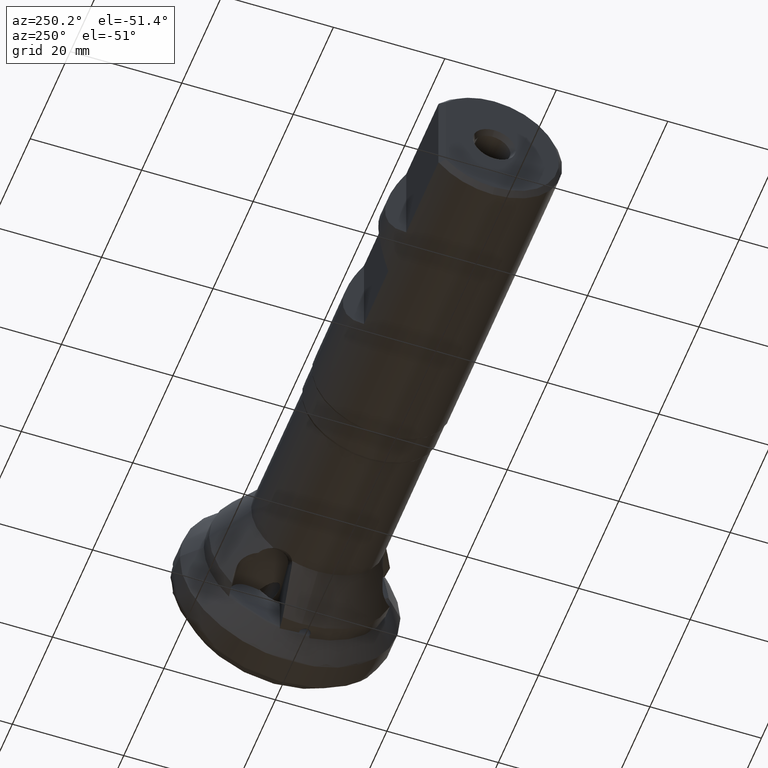
[diagram: clean part render]
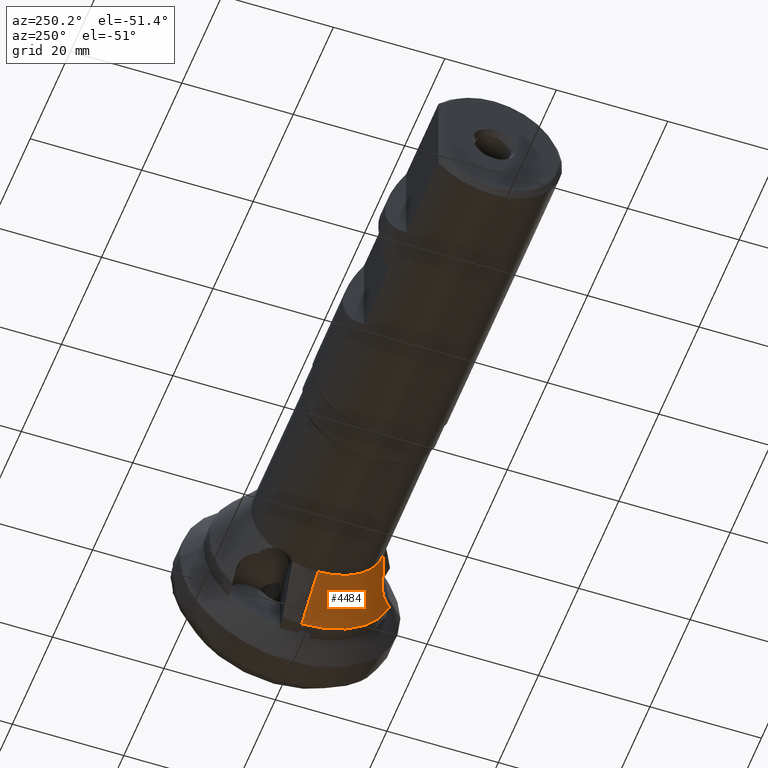
[diagram: same view with one face highlighted and labeled with its STEP entity id]
A machine part, auxiliary view. The second image highlights one B-rep face of the part: STEP entity #4484.
In plain terms, the highlighted conical surface has half-angle 30 deg.
Its self-contained STEP definition (entity closure, byte-faithful):
#45 = B_SPLINE_CURVE_WITH_KNOTS ( 'NONE', 3,
 ( #4286, #6453, #3791, #599, #4307, #1150, #4857, #1676 ),
 .UNSPECIFIED., .F., .F.,
 ( 4, 2, 2, 4 ),
 ( 1.195973256514575300E-014, 0.001483257946159339400, 0.002224886919233032700, 0.002966515892306726200 ),
 .UNSPECIFIED. ) ;
#46 = EDGE_CURVE ( 'NONE', #5922, #237, #4015, .T. ) ;
#141 = EDGE_CURVE ( 'NONE', #5922, #5169, #6803, .T. ) ;
#237 = VERTEX_POINT ( 'NONE', #5972 ) ;
#312 = CARTESIAN_POINT ( 'NONE',  ( -13.17600000000000700, 0.0000000000000000000, 0.0000000000000000000 ) ) ;
#322 = ORIENTED_EDGE ( 'NONE', *, *, #3112, .F. ) ;
#323 = CARTESIAN_POINT ( 'NONE',  ( -15.51637310254267500, -13.92329718746386300, -6.339907771302055300 ) ) ;
#526 = DIRECTION ( 'NONE',  ( 0.0000000000000000000, 0.0000000000000000000, -1.000000000000000000 ) ) ;
#572 = CARTESIAN_POINT ( 'NONE',  ( -14.29369055177255100, -14.82479804637915600, -6.033915994759585300 ) ) ;
#599 = CARTESIAN_POINT ( 'NONE',  ( -20.15300479942955600, -12.06264052520544400, -3.717922587879297400 ) ) ;
#674 = ORIENTED_EDGE ( 'NONE', *, *, #46, .F. ) ;
#691 = CARTESIAN_POINT ( 'NONE',  ( -13.36690338539961700, -15.60677632926806300, -5.479106854178263000 ) ) ;
#728 = DIRECTION ( 'NONE',  ( 0.8660244291774795700, 0.0000000000000000000, -0.5000016880649711400 ) ) ;
#859 = DIRECTION ( 'NONE',  ( 0.0000000000000000000, 0.0000000000000000000, -1.000000000000000000 ) ) ;
#1086 = VECTOR ( 'NONE', #728, 1000.000000000000000 ) ;
#1119 = CARTESIAN_POINT ( 'NONE',  ( -13.74279684287580700, -15.28564469960080400, -5.725513246154736900 ) ) ;
#1150 = CARTESIAN_POINT ( 'NONE',  ( -19.56899622333038000, -12.28701818069042600, -4.119897846921881900 ) ) ;
#1332 = CONICAL_SURFACE ( 'NONE', #1617, 16.64999999999999500, 0.5236007248089266100 ) ;
#1385 = CARTESIAN_POINT ( 'NONE',  ( -15.98530327373469400, -13.61160238523806500, -6.369225011001479000 ) ) ;
#1617 = AXIS2_PLACEMENT_3D ( 'NONE', #5159, #4066, #6739 ) ;
#1676 = CARTESIAN_POINT ( 'NONE',  ( -19.14843200605529500, -12.48726256752252800, -4.284364252389827300 ) ) ;
#1717 = ORIENTED_EDGE ( 'NONE', *, *, #2329, .F. ) ;
#1738 = CIRCLE ( 'NONE', #2429, 11.99999999999999500 ) ;
#1762 = CARTESIAN_POINT ( 'NONE',  ( -13.55590567701725900, -15.44715621190274600, -5.601935350943398900 ) ) ;
#1843 = CARTESIAN_POINT ( 'NONE',  ( -13.17600000000000000, -15.76469322306284900, -5.356953199601067100 ) ) ;
#1912 = CARTESIAN_POINT ( 'NONE',  ( -16.72038457883487800, -13.20973583487509200, -6.226803821439577100 ) ) ;
#1988 = CARTESIAN_POINT ( 'NONE',  ( -17.37676110448518300, -12.93880028506780100, -5.911076082954972200 ) ) ;
#2271 = B_SPLINE_CURVE_WITH_KNOTS ( 'NONE', 3,
 ( #3898, #1762, #691, #6045 ),
 .UNSPECIFIED., .F., .F.,
 ( 4, 4 ),
 ( 0.0004663446877475289500, 0.001294933144289122600 ),
 .UNSPECIFIED. ) ;
#2316 = VERTEX_POINT ( 'NONE', #4370 ) ;
#2329 = EDGE_CURVE ( 'NONE', #4595, #2748, #2271, .T. ) ;
#2429 = AXIS2_PLACEMENT_3D ( 'NONE', #6898, #3722, #526 ) ;
#2443 = ORIENTED_EDGE ( 'NONE', *, *, #6875, .F. ) ;
#2548 = CARTESIAN_POINT ( 'NONE',  ( -16.95983074412414000, -13.11089854270103300, -6.111626338240144600 ) ) ;
#2649 = CARTESIAN_POINT ( 'NONE',  ( -15.51637310254267500, -13.92329718746386300, -6.339907771302055300 ) ) ;
#2748 = VERTEX_POINT ( 'NONE', #1843 ) ;
#2815 = CARTESIAN_POINT ( 'NONE',  ( -21.22999999999233000, -11.75619173056652000, -2.406648290498488900 ) ) ;
#3080 = CARTESIAN_POINT ( 'NONE',  ( -18.52049868956225600, -12.59674162429483200, -5.037102076368069200 ) ) ;
#3112 = EDGE_CURVE ( 'NONE', #4183, #5169, #45, .T. ) ;
#3517 = ORIENTED_EDGE ( 'NONE', *, *, #4232, .T. ) ;
#3597 = CARTESIAN_POINT ( 'NONE',  ( -17.77700534866228900, -12.80394160120070500, -5.651445889722583400 ) ) ;
#3646 = CARTESIAN_POINT ( 'NONE',  ( -16.95983074412414000, -13.11089854270103300, -6.111626338240144600 ) ) ;
#3722 = DIRECTION ( 'NONE',  ( 1.000000000000000000, -0.0000000000000000000, -0.0000000000000000000 ) ) ;
#3763 = CARTESIAN_POINT ( 'NONE',  ( -14.88616555250096400, -14.36994745491897700, -6.233380843496274100 ) ) ;
#3791 = CARTESIAN_POINT ( 'NONE',  ( -20.68000981247876200, -11.89201871699774700, -3.222211777670165300 ) ) ;
#3898 = CARTESIAN_POINT ( 'NONE',  ( -13.74279684287580700, -15.28564469960080400, -5.725513246154736900 ) ) ;
#4015 = B_SPLINE_CURVE_WITH_KNOTS ( 'NONE', 3,
 ( #5633, #1912, #5073, #1385, #4545, #323 ),
 .UNSPECIFIED., .F., .F.,
 ( 4, 2, 4 ),
 ( 0.0000000000000000000, 0.0008471933625931627300, 0.001694386725186325500 ),
 .UNSPECIFIED. ) ;
#4023 = DIRECTION ( 'NONE',  ( 1.000000000000000000, -0.0000000000000000000, -0.0000000000000000000 ) ) ;
#4041 = VERTEX_POINT ( 'NONE', #5376 ) ;
#4066 = DIRECTION ( 'NONE',  ( 1.000000000000000000, -0.0000000000000000000, -0.0000000000000000000 ) ) ;
#4183 = VERTEX_POINT ( 'NONE', #2815 ) ;
#4232 = EDGE_CURVE ( 'NONE', #2316, #4041, #6568, .T. ) ;
#4281 = CARTESIAN_POINT ( 'NONE',  ( -14.00937450501856000, -15.05526804610408800, -5.901782179181215500 ) ) ;
#4286 = CARTESIAN_POINT ( 'NONE',  ( -21.22999999999233000, -11.75619173056652000, -2.406648290498488900 ) ) ;
#4297 = FACE_OUTER_BOUND ( 'NONE', #4550, .T. ) ;
#4307 = CARTESIAN_POINT ( 'NONE',  ( -19.96547441999472000, -12.12869460536600200, -3.867649642012885600 ) ) ;
#4366 = B_SPLINE_CURVE_WITH_KNOTS ( 'NONE', 3,
 ( #2649, #5876, #3763, #572, #4281, #1119 ),
 .UNSPECIFIED., .F., .F.,
 ( 4, 2, 4 ),
 ( 3.224070938884220700E-006, 0.001162889526994847100, 0.002322554983050810100 ),
 .UNSPECIFIED. ) ;
#4370 = CARTESIAN_POINT ( 'NONE',  ( -21.23000000000001100, 0.0000000000000000000, -11.99999999999999600 ) ) ;
#4433 = CARTESIAN_POINT ( 'NONE',  ( -13.17600000000000700, 0.0000000000000000000, -16.64999999999999500 ) ) ;
#4484 = ADVANCED_FACE ( 'NONE', ( #4297 ), #1332, .T. ) ;
#4545 = CARTESIAN_POINT ( 'NONE',  ( -15.74809823161510500, -13.76338927382542100, -6.368246528363211000 ) ) ;
#4550 = EDGE_LOOP ( 'NONE', ( #6352, #3517, #5791, #1717, #2443, #674, #6773, #322 ) ) ;
#4595 = VERTEX_POINT ( 'NONE', #5206 ) ;
#4857 = CARTESIAN_POINT ( 'NONE',  ( -19.35946117575254300, -12.37976934704760800, -4.222233993178820200 ) ) ;
#5047 = EDGE_CURVE ( 'NONE', #4183, #2316, #1738, .T. ) ;
#5073 = CARTESIAN_POINT ( 'NONE',  ( -16.47353767324189300, -13.33336404645196400, -6.298515215218860600 ) ) ;
#5075 = CIRCLE ( 'NONE', #6443, 16.64999999999999500 ) ;
#5159 = CARTESIAN_POINT ( 'NONE',  ( -13.17600000000000700, 0.0000000000000000000, 0.0000000000000000000 ) ) ;
#5169 = VERTEX_POINT ( 'NONE', #5998 ) ;
#5206 = CARTESIAN_POINT ( 'NONE',  ( -13.74279684287580700, -15.28564469960080400, -5.725513246154736900 ) ) ;
#5376 = CARTESIAN_POINT ( 'NONE',  ( -13.17600000000000700, 0.0000000000000000000, -16.64999999999999500 ) ) ;
#5633 = CARTESIAN_POINT ( 'NONE',  ( -16.95983074412414000, -13.11089854270103300, -6.111626338240144600 ) ) ;
#5681 = EDGE_CURVE ( 'NONE', #2748, #4041, #5075, .T. ) ;
#5751 = CARTESIAN_POINT ( 'NONE',  ( -19.14843200605529500, -12.48726256752252800, -4.284364252389827300 ) ) ;
#5791 = ORIENTED_EDGE ( 'NONE', *, *, #5681, .F. ) ;
#5876 = CARTESIAN_POINT ( 'NONE',  ( -15.19522612992302900, -14.14491295511264100, -6.300633195970406500 ) ) ;
#5922 = VERTEX_POINT ( 'NONE', #3646 ) ;
#5972 = CARTESIAN_POINT ( 'NONE',  ( -15.51637310254267500, -13.92329718746386300, -6.339907771302055300 ) ) ;
#5998 = CARTESIAN_POINT ( 'NONE',  ( -19.14843200605529500, -12.48726256752252800, -4.284364252389827300 ) ) ;
#6045 = CARTESIAN_POINT ( 'NONE',  ( -13.17600000000000000, -15.76469322306284900, -5.356953199601067100 ) ) ;
#6269 = CARTESIAN_POINT ( 'NONE',  ( -18.86243813092657700, -12.52489264289924800, -4.683484455268614800 ) ) ;
#6352 = ORIENTED_EDGE ( 'NONE', *, *, #5047, .T. ) ;
#6443 = AXIS2_PLACEMENT_3D ( 'NONE', #312, #4023, #859 ) ;
#6453 = CARTESIAN_POINT ( 'NONE',  ( -20.98313058596927400, -11.81439638916348900, -2.833010567420017000 ) ) ;
#6568 = LINE ( 'NONE', #4433, #1086 ) ;
#6739 = DIRECTION ( 'NONE',  ( 0.0000000000000000000, 0.0000000000000000000, -1.000000000000000000 ) ) ;
#6773 = ORIENTED_EDGE ( 'NONE', *, *, #141, .T. ) ;
#6803 = B_SPLINE_CURVE_WITH_KNOTS ( 'NONE', 3,
 ( #2548, #1988, #3597, #3080, #6269, #5751 ),
 .UNSPECIFIED., .F., .F.,
 ( 4, 2, 4 ),
 ( 0.0000000000000000000, 0.001478344117500283100, 0.002956688235000566200 ),
 .UNSPECIFIED. ) ;
#6875 = EDGE_CURVE ( 'NONE', #237, #4595, #4366, .T. ) ;
#6898 = CARTESIAN_POINT ( 'NONE',  ( -21.23000000000001100, 0.0000000000000000000, 0.0000000000000000000 ) ) ;